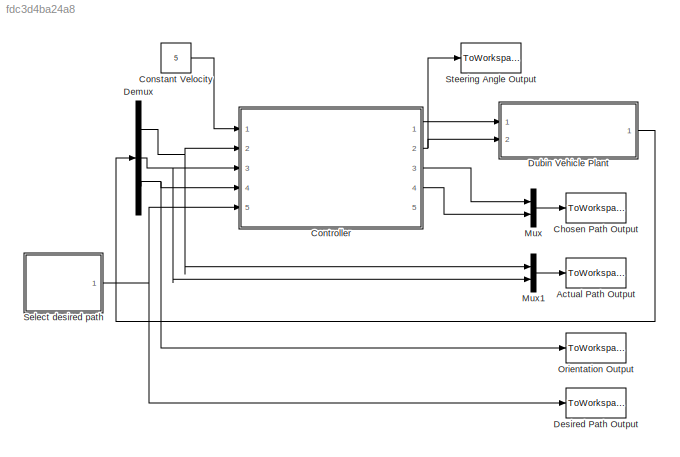
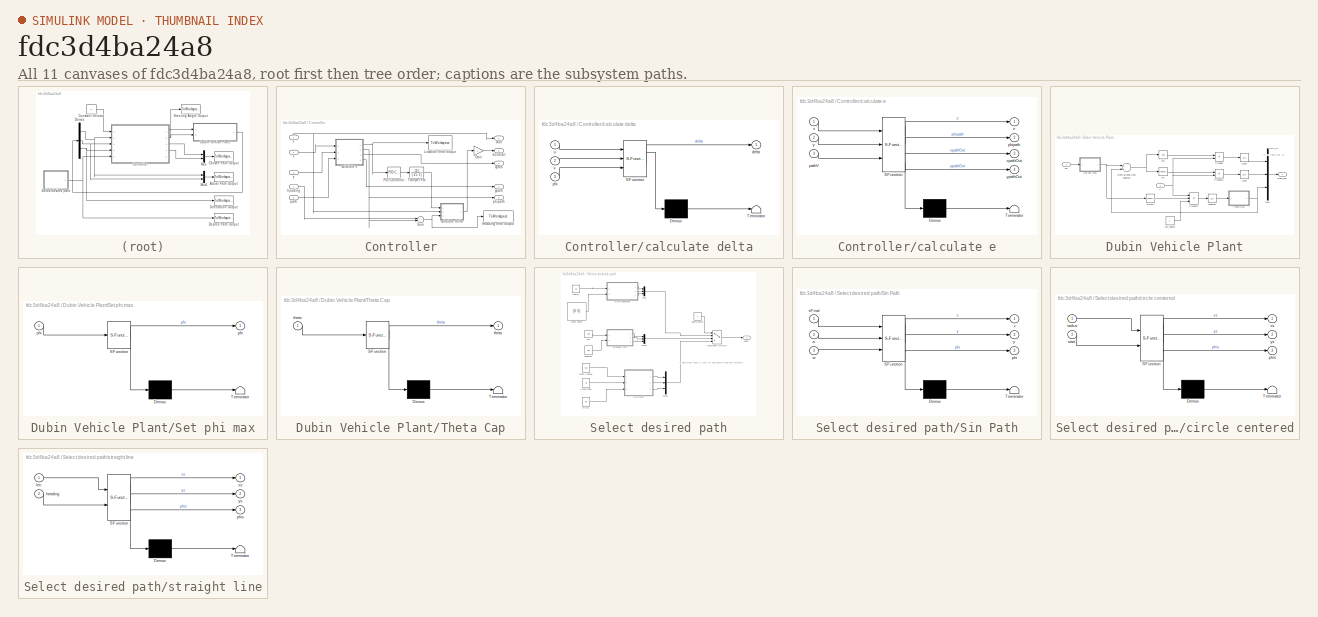
[diagram: thumbnail index - all 11 canvases of the model, root first then tree order]
MODEL slx_fdc3d4ba24a8
KIND model
CONFIG AbsTol = auto
CONFIG FixedStep = auto
CONFIG MaxStep = auto
CONFIG MinStep = auto
CONFIG RelTol = 1e-3
CONFIG SampleTimeConstraint = Unconstrained
CONFIG Solver = VariableStepAuto
CONFIG SolverMode = Auto
CONFIG SolverName = VariableStepAuto
CONFIG StartTime = 0.0
CONFIG StopTime = 30
BLOCK [ToWorkspace] Actual Path Output
  FixptAsFi = on
  MaxDataPoints = inf
  Ports = [1]
  SampleTime = -1
  Save2DSignal = 2-D array (concatenate along first dimension)
  VariableName = actualPath
BLOCK [ToWorkspace] Chosen Path Output
  FixptAsFi = on
  MaxDataPoints = inf
  Ports = [1]
  SampleTime = -1
  Save2DSignal = 2-D array (concatenate along first dimension)
  VariableName = chosenPath
BLOCK [Constant] Constant Velocity
  Value = 5
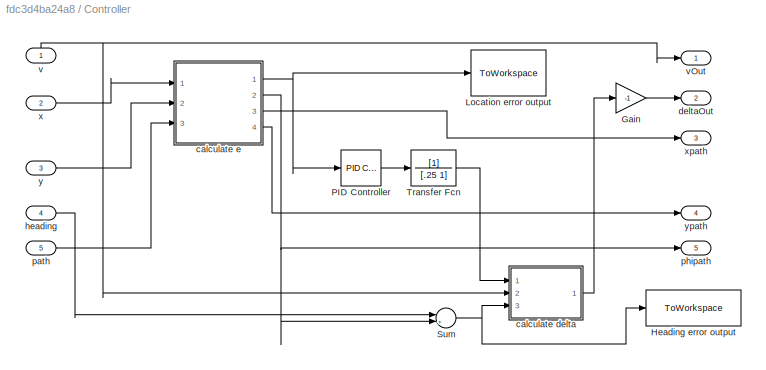
BLOCK [SubSystem] Controller
  Ports = [5, 5]
  RequestExecContextInheritance = off
  Variant = off
BLOCK [Gain] Controller/Gain
  Gain = -1
  OutDataTypeStr = Inherit: Inherit via internal rule
  ParamDataTypeStr = Inherit: Inherit via internal rule
  SaturateOnIntegerOverflow = off
BLOCK [ToWorkspace] Controller/Heading error output
  FixptAsFi = on
  MaxDataPoints = inf
  Ports = [1]
  SampleTime = -1
  Save2DSignal = 2-D array (concatenate along first dimension)
  SaveFormat = Structure With Time
  VariableName = headingError
BLOCK [ToWorkspace] Controller/Location error output 
  FixptAsFi = on
  MaxDataPoints = inf
  Ports = [1]
  SampleTime = -1
  Save2DSignal = 2-D array (concatenate along first dimension)
  SaveFormat = Structure With Time
  VariableName = locationError
BLOCK [Reference] Controller/PID Controller  REF=simulink/Continuous/PID Controller
  Ports = [1, 1]
  SourceBlock = simulink/Continuous/PID Controller
  SourceType = PID 1dof
BLOCK [Sum] Controller/Sum
  IconShape = round
  InputSameDT = off
  Inputs = |+-
  OutDataTypeStr = Inherit: Inherit via internal rule
  Ports = [2, 1]
  SaturateOnIntegerOverflow = off
BLOCK [TransferFcn] Controller/Transfer Fcn
  Denominator = [.25 1]
BLOCK [SubSystem] Controller/calculate delta
  ErrorFcn = Stateflow.Translate.translate
  PermitHierarchicalResolution = ExplicitOnly
  Ports = [3, 1]
  RequestExecContextInheritance = off
  SFBlockType = MATLAB Function
  TreatAsAtomicUnit = on
  Variant = off
BLOCK [Demux] Controller/calculate delta/ Demux 
  Outputs = 1
  Ports = [1, 1]
BLOCK [S-Function] Controller/calculate delta/ SFunction 
  EnableBusSupport = on
  FunctionName = sf_sfun
  PortCounts = [3 2]
  Ports = [3, 2]
  SFunctionDeploymentMode = off
  Tag = Stateflow S-Function path_follower_sim 3
BLOCK [Terminator] Controller/calculate delta/ Terminator 
BLOCK [Outport] Controller/calculate delta/delta
  IconDisplay = Port number
BLOCK [Inport] Controller/calculate delta/phi
  IconDisplay = Port number
  Port = 3
BLOCK [Inport] Controller/calculate delta/u
  IconDisplay = Port number
BLOCK [Inport] Controller/calculate delta/v
  IconDisplay = Port number
  Port = 2
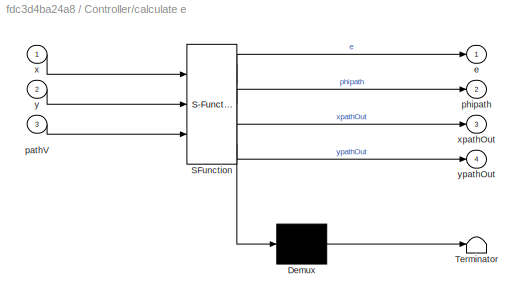
BLOCK [SubSystem] Controller/calculate e
  ErrorFcn = Stateflow.Translate.translate
  PermitHierarchicalResolution = ExplicitOnly
  Ports = [3, 4]
  RequestExecContextInheritance = off
  SFBlockType = MATLAB Function
  TreatAsAtomicUnit = on
  Variant = off
BLOCK [Demux] Controller/calculate e/ Demux 
  Outputs = 1
  Ports = [1, 1]
BLOCK [S-Function] Controller/calculate e/ SFunction 
  EnableBusSupport = on
  FunctionName = sf_sfun
  PortCounts = [3 5]
  Ports = [3, 5]
  SFunctionDeploymentMode = off
  Tag = Stateflow S-Function path_follower_sim 1
BLOCK [Terminator] Controller/calculate e/ Terminator 
BLOCK [Outport] Controller/calculate e/e
  IconDisplay = Port number
BLOCK [Inport] Controller/calculate e/pathV
  IconDisplay = Port number
  Port = 3
BLOCK [Outport] Controller/calculate e/phipath
  IconDisplay = Port number
  Port = 2
BLOCK [Inport] Controller/calculate e/x
  IconDisplay = Port number
BLOCK [Outport] Controller/calculate e/xpathOut
  IconDisplay = Port number
  Port = 3
BLOCK [Inport] Controller/calculate e/y
  IconDisplay = Port number
  Port = 2
BLOCK [Outport] Controller/calculate e/ypathOut
  IconDisplay = Port number
  Port = 4
BLOCK [Outport] Controller/deltaOut
  IconDisplay = Port number
  Port = 2
BLOCK [Inport] Controller/heading
  IconDisplay = Port number
  Port = 4
BLOCK [Inport] Controller/path
  IconDisplay = Port number
  Port = 5
BLOCK [Outport] Controller/phipath
  IconDisplay = Port number
  Port = 5
BLOCK [Inport] Controller/v
  IconDisplay = Port number
BLOCK [Outport] Controller/vOut
  IconDisplay = Port number
BLOCK [Inport] Controller/x
  IconDisplay = Port number
  Port = 2
BLOCK [Outport] Controller/xpath
  IconDisplay = Port number
  Port = 3
BLOCK [Inport] Controller/y
  IconDisplay = Port number
  Port = 3
BLOCK [Outport] Controller/ypath
  IconDisplay = Port number
  Port = 4
BLOCK [Demux] Demux
  DisplayOption = bar
  Outputs = 3
  Ports = [1, 3]
BLOCK [ToWorkspace] Desired Path Output
  FixptAsFi = on
  MaxDataPoints = inf
  Ports = [1]
  SampleTime = -1
  Save2DSignal = 2-D array (concatenate along first dimension)
  VariableName = desiredPath
BLOCK [SubSystem] Dubin Vehicle Plant
  Ports = [2, 1]
  RequestExecContextInheritance = off
  Variant = off
BLOCK [Mux] Dubin Vehicle Plant/Mux
  DisplayOption = bar
  Inputs = 3
  Ports = [3, 1]
BLOCK [Product] Dubin Vehicle Plant/Product
  InputSameDT = off
  OutDataTypeStr = Inherit: Inherit via internal rule
  Ports = [2, 1]
  RndMeth = Floor
  SaturateOnIntegerOverflow = off
BLOCK [Product] Dubin Vehicle Plant/Product1
  InputSameDT = off
  OutDataTypeStr = Inherit: Inherit via internal rule
  Ports = [2, 1]
  RndMeth = Floor
  SaturateOnIntegerOverflow = off
BLOCK [Product] Dubin Vehicle Plant/Product2
  InputSameDT = off
  Inputs = **/
  OutDataTypeStr = Inherit: Inherit via internal rule
  Ports = [3, 1]
  RndMeth = Floor
  SaturateOnIntegerOverflow = off
BLOCK [SubSystem] Dubin Vehicle Plant/Set phi max
  ErrorFcn = Stateflow.Translate.translate
  PermitHierarchicalResolution = ExplicitOnly
  Ports = [1, 1]
  RequestExecContextInheritance = off
  SFBlockType = MATLAB Function
  TreatAsAtomicUnit = on
  Variant = off
BLOCK [Demux] Dubin Vehicle Plant/Set phi max/ Demux 
  Outputs = 1
  Ports = [1, 1]
BLOCK [S-Function] Dubin Vehicle Plant/Set phi max/ SFunction 
  EnableBusSupport = on
  FunctionName = sf_sfun
  PortCounts = [1 2]
  Ports = [1, 2]
  SFunctionDeploymentMode = off
  Tag = Stateflow S-Function path_follower_sim 7
BLOCK [Terminator] Dubin Vehicle Plant/Set phi max/ Terminator 
BLOCK [Outport] Dubin Vehicle Plant/Set phi max/phi
  IconDisplay = Port number
BLOCK [Inport] Dubin Vehicle Plant/Set phi max/phi 
  IconDisplay = Port number
BLOCK [SubSystem] Dubin Vehicle Plant/Theta Cap
  ErrorFcn = Stateflow.Translate.translate
  PermitHierarchicalResolution = ExplicitOnly
  Ports = [1, 1]
  RequestExecContextInheritance = off
  SFBlockType = MATLAB Function
  TreatAsAtomicUnit = on
  Variant = off
BLOCK [Demux] Dubin Vehicle Plant/Theta Cap/ Demux 
  Outputs = 1
  Ports = [1, 1]
BLOCK [S-Function] Dubin Vehicle Plant/Theta Cap/ SFunction 
  EnableBusSupport = on
  FunctionName = sf_sfun
  PortCounts = [1 2]
  Ports = [1, 2]
  SFunctionDeploymentMode = off
  Tag = Stateflow S-Function path_follower_sim 2
BLOCK [Terminator] Dubin Vehicle Plant/Theta Cap/ Terminator 
BLOCK [Outport] Dubin Vehicle Plant/Theta Cap/theta
  IconDisplay = Port number
BLOCK [Inport] Dubin Vehicle Plant/Theta Cap/theta 
  IconDisplay = Port number
BLOCK [Constant] Dubin Vehicle Plant/car_length
  Value = L
BLOCK [Trigonometry] Dubin Vehicle Plant/cos
  Operator = cos
  Ports = [1, 1]
BLOCK [Integrator] Dubin Vehicle Plant/heading
  InitialCondition = theta0
  Ports = [1, 1]
BLOCK [Inport] Dubin Vehicle Plant/phi
  IconDisplay = Port number
  Port = 2
BLOCK [Trigonometry] Dubin Vehicle Plant/sin
  Ports = [1, 1]
BLOCK [Trigonometry] Dubin Vehicle Plant/sin(phi)
  Ports = [1, 1]
BLOCK [Outport] Dubin Vehicle Plant/state_vec
  IconDisplay = Port number
BLOCK [Sum] Dubin Vehicle Plant/steering angle and heading
  InputSameDT = off
  OutDataTypeStr = Inherit: Inherit via internal rule
  Ports = [2, 1]
  SaturateOnIntegerOverflow = off
BLOCK [Inport] Dubin Vehicle Plant/v
  IconDisplay = Port number
BLOCK [Integrator] Dubin Vehicle Plant/x_pos
  InitialCondition = x0
  Ports = [1, 1]
BLOCK [Integrator] Dubin Vehicle Plant/y_pos
  InitialCondition = y0
  Ports = [1, 1]
BLOCK [Mux] Mux
  DisplayOption = bar
  Inputs = 2
  Ports = [2, 1]
BLOCK [Mux] Mux1
  DisplayOption = bar
  Inputs = 2
  Ports = [2, 1]
BLOCK [ToWorkspace] Orientation Output
  FixptAsFi = on
  MaxDataPoints = inf
  Ports = [1]
  SampleTime = -1
  Save2DSignal = 2-D array (concatenate along first dimension)
  SaveFormat = Structure With Time
  VariableName = theta
BLOCK [SubSystem] Select desired path
  Ports = [0, 1]
  RequestExecContextInheritance = off
  Variant = off
BLOCK [Constant] Select desired path/Amplitude
  Value = 10
BLOCK [Constant] Select desired path/Final x value 
  Value = 100
BLOCK [MultiPortSwitch] Select desired path/Multiport Switch
  InputSameDT = off
  Ports = [4, 1]
  SaturateOnIntegerOverflow = off
BLOCK [Mux] Select desired path/Mux
  DisplayOption = bar
  Inputs = 3
  Ports = [3, 1]
BLOCK [Mux] Select desired path/Mux1
  DisplayOption = bar
  Inputs = 3
  Ports = [3, 1]
BLOCK [Mux] Select desired path/Mux2
  DisplayOption = bar
  Inputs = 3
  Ports = [3, 1]
BLOCK [Constant] Select desired path/Pitch
  Value = .05
BLOCK [SubSystem] Select desired path/Sin Path
  ErrorFcn = Stateflow.Translate.translate
  PermitHierarchicalResolution = ExplicitOnly
  Ports = [3, 3]
  RequestExecContextInheritance = off
  SFBlockType = MATLAB Function
  TreatAsAtomicUnit = on
  Variant = off
BLOCK [Demux] Select desired path/Sin Path/ Demux 
  Outputs = 1
  Ports = [1, 1]
BLOCK [S-Function] Select desired path/Sin Path/ SFunction 
  EnableBusSupport = on
  FunctionName = sf_sfun
  PortCounts = [3 4]
  Ports = [3, 4]
  SFunctionDeploymentMode = off
  Tag = Stateflow S-Function path_follower_sim 6
BLOCK [Terminator] Select desired path/Sin Path/ Terminator 
BLOCK [Inport] Select desired path/Sin Path/a
  IconDisplay = Port number
  Port = 2
BLOCK [Outport] Select desired path/Sin Path/phi
  IconDisplay = Port number
  Port = 3
BLOCK [Inport] Select desired path/Sin Path/w
  IconDisplay = Port number
  Port = 3
BLOCK [Outport] Select desired path/Sin Path/x
  IconDisplay = Port number
BLOCK [Inport] Select desired path/Sin Path/xFinal
  IconDisplay = Port number
BLOCK [Outport] Select desired path/Sin Path/y
  IconDisplay = Port number
  Port = 2
BLOCK [SubSystem] Select desired path/circle centered
  ErrorFcn = Stateflow.Translate.translate
  PermitHierarchicalResolution = ExplicitOnly
  Ports = [2, 3]
  RequestExecContextInheritance = off
  SFBlockType = MATLAB Function
  TreatAsAtomicUnit = on
  Variant = off
BLOCK [Demux] Select desired path/circle centered/ Demux 
  Outputs = 1
  Ports = [1, 1]
BLOCK [S-Function] Select desired path/circle centered/ SFunction 
  EnableBusSupport = on
  FunctionName = sf_sfun
  PortCounts = [2 4]
  Ports = [2, 4]
  SFunctionDeploymentMode = off
  Tag = Stateflow S-Function path_follower_sim 4
BLOCK [Terminator] Select desired path/circle centered/ Terminator 
BLOCK [Outport] Select desired path/circle centered/phis
  IconDisplay = Port number
  Port = 3
BLOCK [Inport] Select desired path/circle centered/radius
  IconDisplay = Port number
BLOCK [Inport] Select desired path/circle centered/start
  IconDisplay = Port number
  Port = 2
BLOCK [Outport] Select desired path/circle centered/xs
  IconDisplay = Port number
BLOCK [Outport] Select desired path/circle centered/ys
  IconDisplay = Port number
  Port = 2
BLOCK [Constant] Select desired path/heading
  Value = pi/6
BLOCK [Constant] Select desired path/len
  Value = 200
BLOCK [Outport] Select desired path/path
  IconDisplay = Port number
BLOCK [Constant] Select desired path/pathChoice 
  Value = 3
BLOCK [Constant] Select desired path/radius
  Value = 30
BLOCK [Constant] Select desired path/start point
  Value = [0 0]
BLOCK [SubSystem] Select desired path/straight line
  ErrorFcn = Stateflow.Translate.translate
  PermitHierarchicalResolution = ExplicitOnly
  Ports = [2, 3]
  RequestExecContextInheritance = off
  SFBlockType = MATLAB Function
  TreatAsAtomicUnit = on
  Variant = off
BLOCK [Demux] Select desired path/straight line/ Demux 
  Outputs = 1
  Ports = [1, 1]
BLOCK [S-Function] Select desired path/straight line/ SFunction 
  EnableBusSupport = on
  FunctionName = sf_sfun
  PortCounts = [2 4]
  Ports = [2, 4]
  SFunctionDeploymentMode = off
  Tag = Stateflow S-Function path_follower_sim 5
BLOCK [Terminator] Select desired path/straight line/ Terminator 
BLOCK [Inport] Select desired path/straight line/heading
  IconDisplay = Port number
  Port = 2
BLOCK [Inport] Select desired path/straight line/len
  IconDisplay = Port number
BLOCK [Outport] Select desired path/straight line/phis
  IconDisplay = Port number
  Port = 3
BLOCK [Outport] Select desired path/straight line/xs
  IconDisplay = Port number
BLOCK [Outport] Select desired path/straight line/ys
  IconDisplay = Port number
  Port = 2
BLOCK [ToWorkspace] Steering Angle Output
  FixptAsFi = on
  MaxDataPoints = inf
  Ports = [1]
  SampleTime = -1
  Save2DSignal = 2-D array (concatenate along first dimension)
  SaveFormat = Structure With Time
  VariableName = phi
ANNOTATION Dubin Vehicle Plant: state_vec: [x, y, theta, phi, v]
ANNOTATION Select desired path: A path must have [x y phi] for each point along the trajectory
LINE Constant Velocity:1 -> Controller:1
LINE Controller/Gain:1 -> Controller/deltaOut:1
LINE Controller/PID Controller:1 -> Controller/Transfer Fcn:1
NET Controller/Sum:1 -> Controller/Heading error output:1, Controller/calculate delta:3
LINE Controller/Transfer Fcn:1 -> Controller/calculate delta:1
LINE Controller/calculate delta:1 -> Controller/Gain:1
NET Controller/calculate e:1 -> Controller/Location error output :1, Controller/PID Controller:1
NET Controller/calculate e:2 -> Controller/Sum:2, Controller/phipath:1
LINE Controller/calculate e:3 -> Controller/xpath:1
LINE Controller/calculate e:4 -> Controller/ypath:1
LINE Controller/heading:1 -> Controller/Sum:1
LINE Controller/path:1 -> Controller/calculate e:3
NET Controller/v:1 -> Controller/calculate delta:2, Controller/vOut:1
LINE Controller/x:1 -> Controller/calculate e:1
LINE Controller/y:1 -> Controller/calculate e:2
LINE Controller:1 -> Dubin Vehicle Plant:1
NET Controller:2 -> Dubin Vehicle Plant:2, Steering Angle Output:1
LINE Controller:3 -> Mux:1
LINE Controller:4 -> Mux:2
NET Demux:1 -> Controller:2, Mux1:1
NET Demux:2 -> Controller:3, Mux1:2
NET Demux:3 -> Controller:4, Orientation Output:1
LINE Dubin Vehicle Plant/Mux:1 -> Dubin Vehicle Plant/state_vec:1
LINE Dubin Vehicle Plant/Product1:1 -> Dubin Vehicle Plant/y_pos:1
LINE Dubin Vehicle Plant/Product2:1 -> Dubin Vehicle Plant/heading:1
LINE Dubin Vehicle Plant/Product:1 -> Dubin Vehicle Plant/x_pos:1
NET Dubin Vehicle Plant/Set phi max:1 -> Dubin Vehicle Plant/sin(phi):1, Dubin Vehicle Plant/steering angle and heading:1
NET Dubin Vehicle Plant/Theta Cap:1 -> Dubin Vehicle Plant/Mux:3, Dubin Vehicle Plant/steering angle and heading:2
LINE Dubin Vehicle Plant/car_length:1 -> Dubin Vehicle Plant/Product2:3
LINE Dubin Vehicle Plant/cos:1 -> Dubin Vehicle Plant/Product:1
LINE Dubin Vehicle Plant/heading:1 -> Dubin Vehicle Plant/Theta Cap:1
LINE Dubin Vehicle Plant/phi:1 -> Dubin Vehicle Plant/Set phi max:1
LINE Dubin Vehicle Plant/sin(phi):1 -> Dubin Vehicle Plant/Product2:2
LINE Dubin Vehicle Plant/sin:1 -> Dubin Vehicle Plant/Product1:1
NET Dubin Vehicle Plant/steering angle and heading:1 -> Dubin Vehicle Plant/cos:1, Dubin Vehicle Plant/sin:1
NET Dubin Vehicle Plant/v:1 -> Dubin Vehicle Plant/Product1:2, Dubin Vehicle Plant/Product2:1, Dubin Vehicle Plant/Product:2
LINE Dubin Vehicle Plant/x_pos:1 -> Dubin Vehicle Plant/Mux:1
LINE Dubin Vehicle Plant/y_pos:1 -> Dubin Vehicle Plant/Mux:2
LINE Dubin Vehicle Plant:1 -> Demux:1
LINE Mux1:1 -> Actual Path Output:1
LINE Mux:1 -> Chosen Path Output:1
LINE Select desired path/Amplitude:1 -> Select desired path/Sin Path:2
LINE Select desired path/Final x value :1 -> Select desired path/Sin Path:1
LINE Select desired path/Multiport Switch:1 -> Select desired path/path:1
LINE Select desired path/Mux1:1 -> Select desired path/Multiport Switch:4
LINE Select desired path/Mux2:1 -> Select desired path/Multiport Switch:3
LINE Select desired path/Mux:1 -> Select desired path/Multiport Switch:2
LINE Select desired path/Pitch:1 -> Select desired path/Sin Path:3
LINE Select desired path/Sin Path:1 -> Select desired path/Mux1:1
LINE Select desired path/Sin Path:2 -> Select desired path/Mux1:2
LINE Select desired path/Sin Path:3 -> Select desired path/Mux1:3
LINE Select desired path/circle centered:1 -> Select desired path/Mux:1
LINE Select desired path/circle centered:2 -> Select desired path/Mux:2
LINE Select desired path/circle centered:3 -> Select desired path/Mux:3
LINE Select desired path/heading:1 -> Select desired path/straight line:2
LINE Select desired path/len:1 -> Select desired path/straight line:1
LINE Select desired path/pathChoice :1 -> Select desired path/Multiport Switch:1
LINE Select desired path/radius:1 -> Select desired path/circle centered:1
LINE Select desired path/start point:1 -> Select desired path/circle centered:2
LINE Select desired path/straight line:1 -> Select desired path/Mux2:1
LINE Select desired path/straight line:2 -> Select desired path/Mux2:2
LINE Select desired path/straight line:3 -> Select desired path/Mux2:3
NET Select desired path:1 -> Controller:5, Desired Path Output:1
note: NET lines group one-source signal fan-out (src -> all destinations, sorted); 1:1 wires keep LINE
CHART Controller/calculate e states=1 transitions=1
  STATE_LABEL 'eML_blk_kernel()'
  STATE_LABEL 'SCRIPT:\nfunction [e,phipath,xpathOut,ypathOut] = fcn(x,y,pathV)\n%#codegen\npath=reshape(pathV,[],3);\nx1 = path(1,1);\ny1 = path(1,2);\nphi1=path(1,3);\netmp = inf;\ne = inf;\nindex=1;\n% find the nearest x,y\nfor i=1:length(path)\n   etmp = sqrt((x-path(i,1))^2+(y-path(i,2))^2);\n   if( etmp < e )\n       e = etmp;\n       index=i;\n   end\nend\n\nxpathOut=path(index,1);\nypathOut=path(index,2);\nphipath=path(index...<+142ch>'
CHART Dubin Vehicle Plant/Theta Cap states=1 transitions=1
  STATE_LABEL 'eML_blk_kernel()'
  STATE_LABEL 'SCRIPT:\nfunction theta = fcn(theta)\n    while abs(theta) > pi\n        theta = theta - sign(theta)*2*pi;\n    end\n'
CHART Controller/calculate delta states=1 transitions=1
  STATE_LABEL 'eML_blk_kernel()'
  STATE_LABEL 'SCRIPT:\nfunction delta = fcn(u,v,phi)\n%#codegen\nif( abs(v) < eps )\n    v = eps;\nend\n\n% if phi is greater than pi (or less than -pi), then \n% we normalize to between [-pi,pi]\nif( phi < -pi )\n    phi = phi+2*pi;\nelseif( phi > pi )\n    phi = phi-2*pi;\nend\n\ndelta = phi + atan2(u,v);'
CHART Select desired path/circle centered states=1 transitions=1
  STATE_LABEL 'eML_blk_kernel()'
  STATE_LABEL 'SCRIPT:\nfunction [xs,ys,phis] = getCirclePath(radius,start)\n%#codegen\nangles=linspace(-pi,pi,3000);\nr = radius*exp(angles*1j);\nxs = real(r)-radius+start(1);\nys = imag(r)+start(2);\nphis=(pi/2)+angles;\n\n% % % To visualize the angles, run this code:\n% radius=3.6; start=[0 0];\n% angles=linspace(-pi,pi,10);\n% r = radius*exp(angles*1j);\n% xs = real(r)-radius+start(1);\n% ys = imag(r)+start(2);\n% % since ...<+245ch>'
CHART Select desired path/straight line states=1 transitions=1
  STATE_LABEL 'eML_blk_kernel()'
  STATE_LABEL 'SCRIPT:\nfunction [xs,ys,phis] = fcn(len,heading)\n%#codegen\nr = linspace(0,len,3000);\nxs = r*cos(heading);\nys = r*sin(heading);\nphis = heading*ones(1,length(r));\n'
CHART Select desired path/Sin Path states=1 transitions=1
  STATE_LABEL 'eML_blk_kernel()'
  STATE_LABEL 'SCRIPT:\nfunction [x,y,phi] = getSinPath(xFinal,a,w)\n\n% x = 0:.01:xFinal;\nx = linspace(0,xFinal,3000);\ny = a*sin(w*x);\nslope = a*w*cos(w*x);\nphi = atan(slope);\nend'
CHART Dubin Vehicle Plant/Set phi max states=1 transitions=1
  STATE_LABEL 'eML_blk_kernel()'
  STATE_LABEL 'SCRIPT:\nfunction phi = phiCap(phi)\n\nif phi > pi/6\n    phi = pi/6;\nelseif phi < -pi/6\n    phi = -pi/6;\nend\n'
